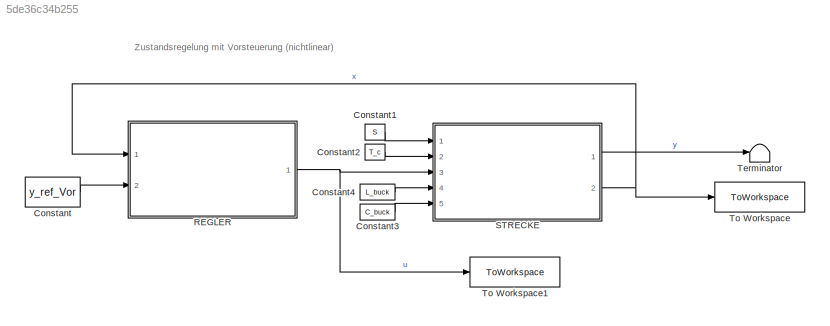
MODEL slx_5de36c34b255
KIND model
CONFIG AbsTol = auto
CONFIG EnableMultiTasking = off
CONFIG FixedStep = 1/1e4
CONFIG MaxStep = auto
CONFIG MinStep = auto
CONFIG RelTol = 1e-3
CONFIG SampleTimeConstraint = Unconstrained
CONFIG SolverName = FixedStepAuto
CONFIG StartTime = 0.0
CONFIG StopTime = 10
BLOCK [Constant] Constant
  Value = y_ref_Vor
BLOCK [Constant] Constant1
  Value = S
BLOCK [Constant] Constant2
  Value = T_c
BLOCK [Constant] Constant3
  Value = C_buck
BLOCK [Constant] Constant4
  Value = L_buck
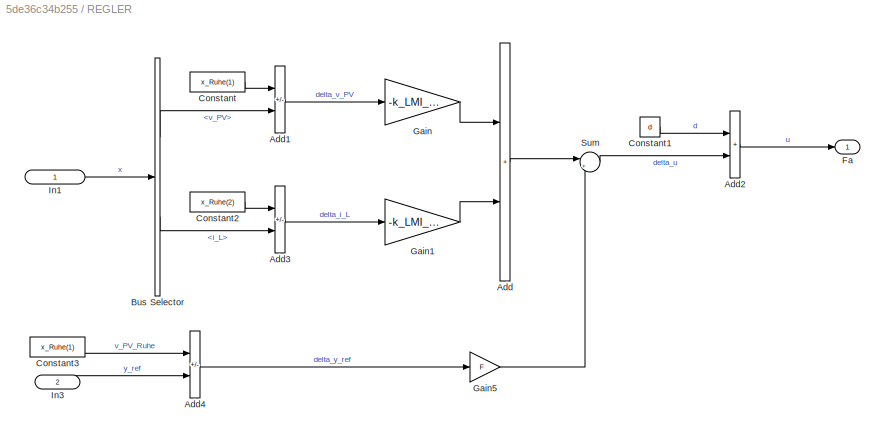
BLOCK [SubSystem] REGLER
  Ports = [2, 1]
  RequestExecContextInheritance = off
BLOCK [Sum] REGLER/Add
  IconShape = rectangular
  Ports = [2, 1]
BLOCK [Sum] REGLER/Add1
  IconShape = rectangular
  Inputs = -+
  Ports = [2, 1]
BLOCK [Sum] REGLER/Add2
  IconShape = rectangular
  Ports = [2, 1]
BLOCK [Sum] REGLER/Add3
  IconShape = rectangular
  Inputs = -+
  Ports = [2, 1]
BLOCK [Sum] REGLER/Add4
  IconShape = rectangular
  Inputs = -+
  Ports = [2, 1]
BLOCK [BusSelector] REGLER/Bus Selector
  OutputSignals = v_PV,i_L
  Ports = [1, 2]
BLOCK [Constant] REGLER/Constant
  Value = x_Ruhe(1)
BLOCK [Constant] REGLER/Constant1
  Value = d
BLOCK [Constant] REGLER/Constant2
  Value = x_Ruhe(2)
BLOCK [Constant] REGLER/Constant3
  Value = x_Ruhe(1)
BLOCK [Outport] REGLER/Fa
  IconDisplay = Signal name
BLOCK [Gain] REGLER/Gain
  Gain = -k_LMI_2(1)
BLOCK [Gain] REGLER/Gain1
  Gain = -k_LMI_2(2)
BLOCK [Gain] REGLER/Gain5
  Gain = F
BLOCK [Inport] REGLER/In1
  IconDisplay = Signal name
BLOCK [Inport] REGLER/In3
  IconDisplay = Signal name
  Port = 2
BLOCK [Sum] REGLER/Sum
  Inputs = |++
  Ports = [2, 1]
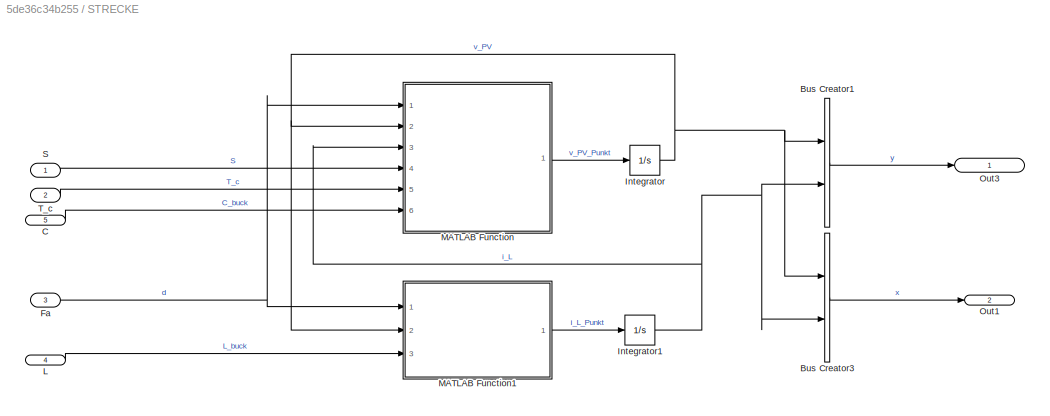
BLOCK [SubSystem] STRECKE
  Ports = [5, 2]
  RequestExecContextInheritance = off
BLOCK [BusCreator] STRECKE/Bus Creator1
  DisplayOption = bar
  InheritFromInputs = on
  Inputs = 2
  Ports = [2, 1]
BLOCK [BusCreator] STRECKE/Bus Creator3
  DisplayOption = bar
  InheritFromInputs = on
  Inputs = 2
  Ports = [2, 1]
BLOCK [Inport] STRECKE/C
  IconDisplay = Signal name
  Port = 5
BLOCK [Inport] STRECKE/Fa
  IconDisplay = Signal name
  Port = 3
BLOCK [Integrator] STRECKE/Integrator
  InitialCondition = x_Ruhe(1)
  Ports = [1, 1]
BLOCK [Integrator] STRECKE/Integrator1
  InitialCondition = x_Ruhe(2)
  Ports = [1, 1]
BLOCK [Inport] STRECKE/L
  IconDisplay = Signal name
  Port = 4
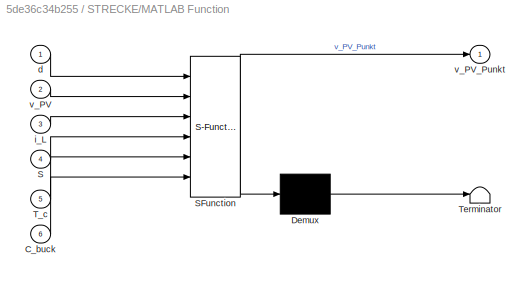
BLOCK [SubSystem] STRECKE/MATLAB Function
  ErrorFcn = Stateflow.Translate.translate
  PermitHierarchicalResolution = ExplicitOnly
  Ports = [6, 1]
  RequestExecContextInheritance = off
  SFBlockType = MATLAB Function
  TreatAsAtomicUnit = on
BLOCK [Demux] STRECKE/MATLAB Function/ Demux 
  Outputs = 1
  Ports = [1, 1]
BLOCK [S-Function] STRECKE/MATLAB Function/ SFunction 
  EnableBusSupport = on
  FunctionName = sf_sfun
  PortCounts = [6 2]
  Ports = [6, 2]
  SFcnIsStateOwnerBlock = off
  SFunctionDeploymentMode = off
  Tag = Stateflow S-Function 2
BLOCK [Terminator] STRECKE/MATLAB Function/ Terminator 
BLOCK [Inport] STRECKE/MATLAB Function/C_buck
  Port = 6
BLOCK [Inport] STRECKE/MATLAB Function/S
  Port = 4
BLOCK [Inport] STRECKE/MATLAB Function/T_c
  Port = 5
BLOCK [Inport] STRECKE/MATLAB Function/d
BLOCK [Inport] STRECKE/MATLAB Function/i_L
  Port = 3
BLOCK [Inport] STRECKE/MATLAB Function/v_PV
  Port = 2
BLOCK [Outport] STRECKE/MATLAB Function/v_PV_Punkt
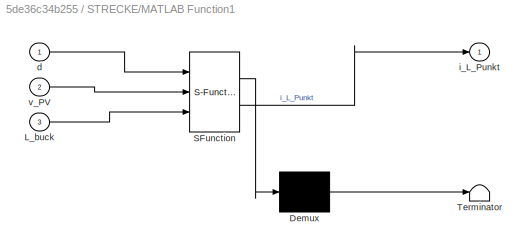
BLOCK [SubSystem] STRECKE/MATLAB Function1
  ErrorFcn = Stateflow.Translate.translate
  PermitHierarchicalResolution = ExplicitOnly
  Ports = [3, 1]
  RequestExecContextInheritance = off
  SFBlockType = MATLAB Function
  TreatAsAtomicUnit = on
BLOCK [Demux] STRECKE/MATLAB Function1/ Demux 
  Outputs = 1
  Ports = [1, 1]
BLOCK [S-Function] STRECKE/MATLAB Function1/ SFunction 
  EnableBusSupport = on
  FunctionName = sf_sfun
  PortCounts = [3 2]
  Ports = [3, 2]
  SFcnIsStateOwnerBlock = off
  SFunctionDeploymentMode = off
  Tag = Stateflow S-Function 1
BLOCK [Terminator] STRECKE/MATLAB Function1/ Terminator 
BLOCK [Inport] STRECKE/MATLAB Function1/L_buck
  Port = 3
BLOCK [Inport] STRECKE/MATLAB Function1/d
BLOCK [Outport] STRECKE/MATLAB Function1/i_L_Punkt
BLOCK [Inport] STRECKE/MATLAB Function1/v_PV
  Port = 2
BLOCK [Outport] STRECKE/Out1
  IconDisplay = Signal name
  Port = 2
BLOCK [Outport] STRECKE/Out3
  IconDisplay = Signal name
BLOCK [Inport] STRECKE/S
  IconDisplay = Signal name
BLOCK [Inport] STRECKE/T_c
  IconDisplay = Signal name
  Port = 2
BLOCK [Terminator] Terminator
BLOCK [ToWorkspace] To Workspace
  FixptAsFi = on
  MaxDataPoints = inf
  Ports = [1]
  SampleTime = -1
  SaveFormat = Timeseries
  VariableName = x_vec
BLOCK [ToWorkspace] To Workspace1
  FixptAsFi = on
  MaxDataPoints = inf
  Ports = [1]
  SampleTime = -1
  SaveFormat = Timeseries
  VariableName = u
ANNOTATION (root): Zustandsregelung mit Vorsteuerung (nichtlinear)
LINE Constant1:1 -> STRECKE:1
LINE Constant2:1 -> STRECKE:2
LINE Constant3:1 -> STRECKE:5
LINE Constant4:1 -> STRECKE:4
LINE Constant:1 -> REGLER:2
LINE REGLER/Add1:1 -> REGLER/Gain:1
LINE REGLER/Add2:1 -> REGLER/Fa:1
LINE REGLER/Add3:1 -> REGLER/Gain1:1
LINE REGLER/Add4:1 -> REGLER/Gain5:1
LINE REGLER/Add:1 -> REGLER/Sum:1
LINE REGLER/Bus Selector:1 -> REGLER/Add1:2
LINE REGLER/Bus Selector:2 -> REGLER/Add3:2
LINE REGLER/Constant1:1 -> REGLER/Add2:1
LINE REGLER/Constant2:1 -> REGLER/Add3:1
LINE REGLER/Constant3:1 -> REGLER/Add4:1
LINE REGLER/Constant:1 -> REGLER/Add1:1
LINE REGLER/Gain1:1 -> REGLER/Add:2
LINE REGLER/Gain5:1 -> REGLER/Sum:2
LINE REGLER/Gain:1 -> REGLER/Add:1
LINE REGLER/In1:1 -> REGLER/Bus Selector:1
LINE REGLER/In3:1 -> REGLER/Add4:2
LINE REGLER/Sum:1 -> REGLER/Add2:2
NET REGLER:1 -> STRECKE:3, To Workspace1:1
LINE STRECKE/Bus Creator1:1 -> STRECKE/Out3:1
LINE STRECKE/Bus Creator3:1 -> STRECKE/Out1:1
LINE STRECKE/C:1 -> STRECKE/MATLAB Function:6
NET STRECKE/Fa:1 -> STRECKE/MATLAB Function1:1, STRECKE/MATLAB Function:1
NET STRECKE/Integrator1:1 -> STRECKE/Bus Creator1:2, STRECKE/Bus Creator3:2, STRECKE/MATLAB Function:3
NET STRECKE/Integrator:1 -> STRECKE/Bus Creator1:1, STRECKE/Bus Creator3:1, STRECKE/MATLAB Function1:2, STRECKE/MATLAB Function:2
LINE STRECKE/L:1 -> STRECKE/MATLAB Function1:3
LINE STRECKE/MATLAB Function1:1 -> STRECKE/Integrator1:1
LINE STRECKE/MATLAB Function:1 -> STRECKE/Integrator:1
LINE STRECKE/S:1 -> STRECKE/MATLAB Function:4
LINE STRECKE/T_c:1 -> STRECKE/MATLAB Function:5
LINE STRECKE:1 -> Terminator:1
NET STRECKE:2 -> REGLER:1, To Workspace:1
note: NET lines group one-source signal fan-out (src -> all destinations, sorted); 1:1 wires keep LINE
CHART STRECKE/MATLAB Function1 states=1 transitions=1
  STATE_LABEL 'eML_blk_kernel()'
  STATE_LABEL 'SCRIPT:\nfunction i_L_Punkt = fcn(d, v_PV, L_buck)\n    % Konstanten\n    c = Konstanten();\n\n    % Berechnung\n    i_L_Punkt = 1/L_buck * v_PV * d - 1/L_buck * c.v_DC;'
CHART STRECKE/MATLAB Function states=1 transitions=1
  STATE_LABEL 'eML_blk_kernel()'
  STATE_LABEL 'SCRIPT:\n% Eingänge\n\n% Ausgänge\n\nfunction v_PV_Punkt = fcn(d, v_PV, i_L, S, T_c, C_buck)\n    % Konstanten\n    c = Konstanten();\n\n    % Berechnung\n    v_oc = @(T_c) c.v_oc_STC * (1 + c.beta_T * (T_c - c.T_c_STC));                                      % für Modul\n    i_ph = @(S, T_c) (S/c.S_STC) * c.i_ph_sc_STC * (1 + c.alpha_T * (T_c - c.T_c_STC));                 % für Modul\n    i_s = @(S, T_c) (i_...<+367ch>'
CHART  states=0 transitions=0
CHART  states=0 transitions=0
